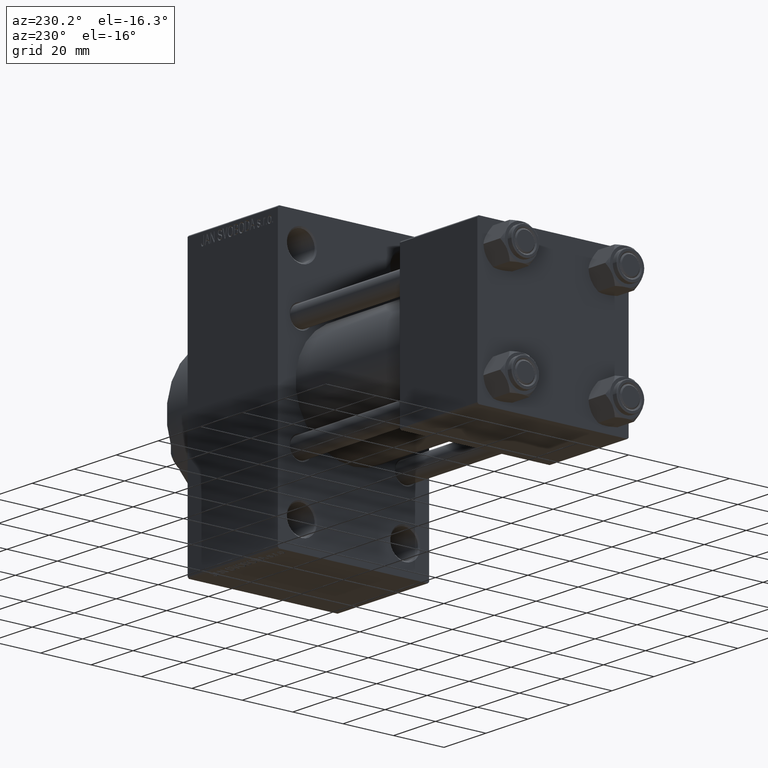
[diagram: clean part render]
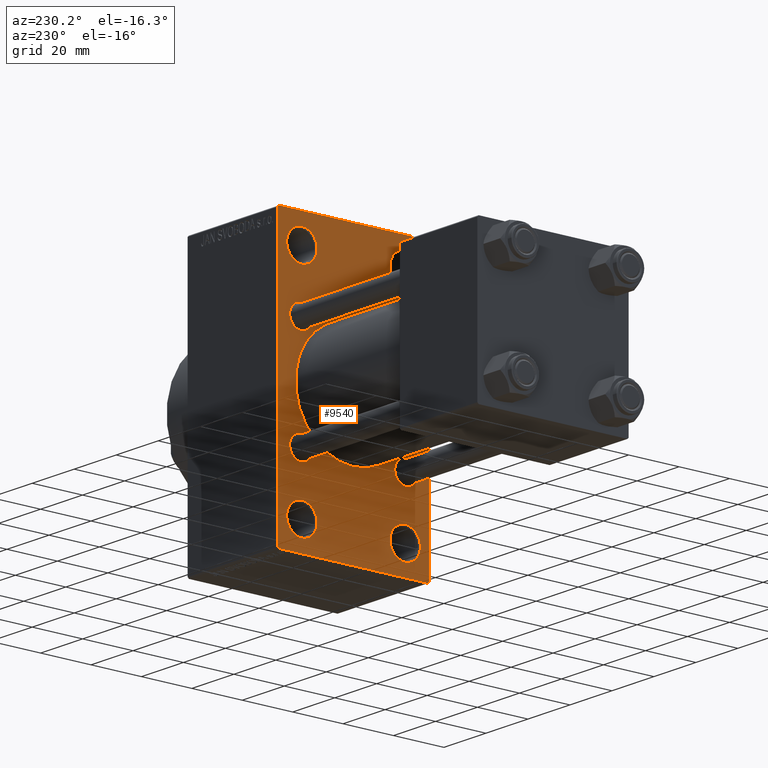
[diagram: same view with one face highlighted and labeled with its STEP entity id]
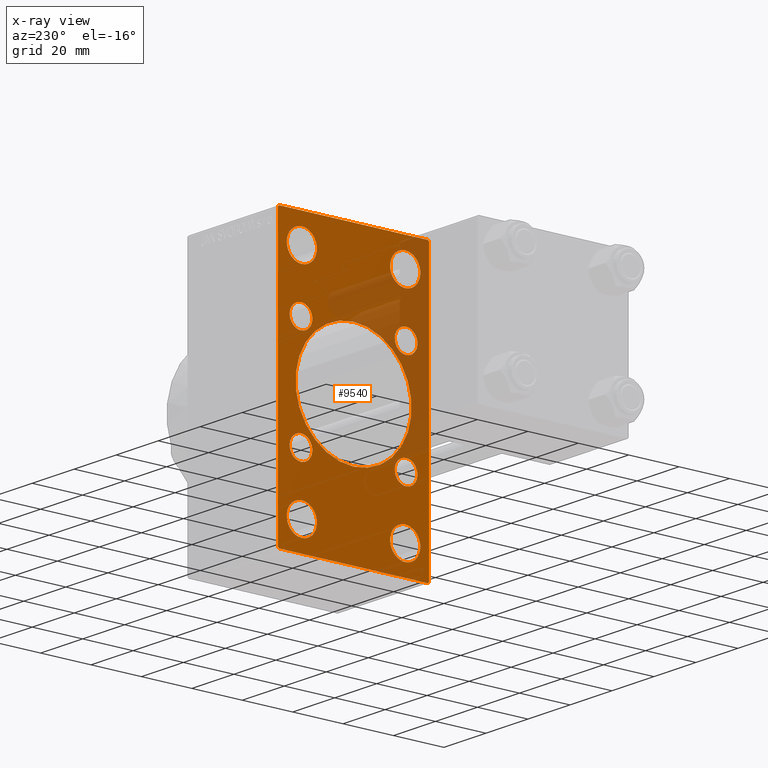
[diagram: x-ray of the same camera — body ghosted, the highlighted face saturated]
A machine part, auxiliary view. The second image highlights one B-rep face of the part: STEP entity #9540.
The next image is the same camera in x-ray: the body ghosted, the highlighted face saturated — about 23% of this face is hidden behind the body in this view.
In plain terms, the highlighted planar face has unit normal (-1, 0, 0).
Its self-contained STEP definition (entity closure, byte-faithful):
#44 = ORIENTED_EDGE ( 'NONE', *, *, #14372, .T. ) ;
#200 = VECTOR ( 'NONE', #3746, 1000.000000000000000 ) ;
#774 = CARTESIAN_POINT ( 'NONE',  ( 95.00000000000000000, -20.50000000000000000, -43.50000000000000000 ) ) ;
#848 = EDGE_CURVE ( 'NONE', #42941, #46891, #1721, .T. ) ;
#858 = CARTESIAN_POINT ( 'NONE',  ( 95.00000000000000000, -20.50000000000000000, 49.49999999999989342 ) ) ;
#940 = VERTEX_POINT ( 'NONE', #25855 ) ;
#1093 = CIRCLE ( 'NONE', #21708, 5.999999999999894307 ) ;
#1255 = DIRECTION ( 'NONE',  ( 0.000000000000000000, 0.000000000000000000, 1.000000000000000000 ) ) ;
#1276 = CARTESIAN_POINT ( 'NONE',  ( 95.00000000000000000, 20.84999999999999787, 20.85000000000000142 ) ) ;
#1329 = CARTESIAN_POINT ( 'NONE',  ( 95.00000000000000000, 41.99999999999998579, -41.99999999999998579 ) ) ;
#1371 = VECTOR ( 'NONE', #38058, 1000.000000000000114 ) ;
#1625 = CARTESIAN_POINT ( 'NONE',  ( 95.00000000000000000, -30.00000000000000000, 53.99999999999997158 ) ) ;
#1721 = CIRCLE ( 'NONE', #23895, 4.500000000000007105 ) ;
#2219 = CIRCLE ( 'NONE', #47242, 5.999999999999894307 ) ;
#2524 = EDGE_CURVE ( 'NONE', #15457, #940, #21631, .T. ) ;
#2753 = EDGE_LOOP ( 'NONE', ( #16267, #5501 ) ) ;
#2939 = ORIENTED_EDGE ( 'NONE', *, *, #27238, .T. ) ;
#3295 = CIRCLE ( 'NONE', #8644, 4.500000000000007105 ) ;
#3383 = DIRECTION ( 'NONE',  ( 0.000000000000000000, 0.000000000000000000, 1.000000000000000000 ) ) ;
#3426 = AXIS2_PLACEMENT_3D ( 'NONE', #4931, #12815, #26699 ) ;
#3618 = CARTESIAN_POINT ( 'NONE',  ( 95.00000000000000000, -20.50000000000000000, 43.50000000000000000 ) ) ;
#3746 = DIRECTION ( 'NONE',  ( 0.000000000000000000, -1.000000000000000000, -1.156482317317871478E-16 ) ) ;
#3866 = VERTEX_POINT ( 'NONE', #1625 ) ;
#3978 = LINE ( 'NONE', #11883, #200 ) ;
#4434 = AXIS2_PLACEMENT_3D ( 'NONE', #20028, #34603, #20510 ) ;
#4503 = AXIS2_PLACEMENT_3D ( 'NONE', #39455, #15088, #7655 ) ;
#4894 = AXIS2_PLACEMENT_3D ( 'NONE', #19446, #15868, #34024 ) ;
#4931 = CARTESIAN_POINT ( 'NONE',  ( 95.00000000000000000, -20.84999999999999076, 20.85000000000000497 ) ) ;
#5340 = ORIENTED_EDGE ( 'NONE', *, *, #41032, .T. ) ;
#5501 = ORIENTED_EDGE ( 'NONE', *, *, #10720, .T. ) ;
#5826 = ORIENTED_EDGE ( 'NONE', *, *, #32778, .T. ) ;
#6007 = VECTOR ( 'NONE', #28524, 1000.000000000000000 ) ;
#6042 = ORIENTED_EDGE ( 'NONE', *, *, #19248, .T. ) ;
#6116 = CARTESIAN_POINT ( 'NONE',  ( 95.00000000000000000, 20.84999999999999787, 16.34999999999999432 ) ) ;
#6732 = DIRECTION ( 'NONE',  ( 0.000000000000000000, 0.000000000000000000, 1.000000000000000000 ) ) ;
#6747 = EDGE_LOOP ( 'NONE', ( #37548, #23166 ) ) ;
#6898 = CARTESIAN_POINT ( 'NONE',  ( 95.00000000000000000, 20.50000000000000000, -49.49999999999989342 ) ) ;
#7034 = CARTESIAN_POINT ( 'NONE',  ( 95.00000000000000000, 20.84999999999999787, -25.35000000000000853 ) ) ;
#7655 = DIRECTION ( 'NONE',  ( 0.000000000000000000, 0.000000000000000000, -1.000000000000000000 ) ) ;
#7831 = DIRECTION ( 'NONE',  ( 0.000000000000000000, 0.000000000000000000, 1.000000000000000000 ) ) ;
#8004 = DIRECTION ( 'NONE',  ( 0.000000000000000000, 0.000000000000000000, 1.000000000000000000 ) ) ;
#8028 = DIRECTION ( 'NONE',  ( 0.000000000000000000, 0.7071067811865279218, -0.7071067811865671127 ) ) ;
#8133 = CARTESIAN_POINT ( 'NONE',  ( 95.00000000000000000, -20.84999999999999076, 20.85000000000000497 ) ) ;
#8436 = FACE_BOUND ( 'NONE', #6747, .T. ) ;
#8644 = AXIS2_PLACEMENT_3D ( 'NONE', #34679, #37782, #26806 ) ;
#8887 = CIRCLE ( 'NONE', #14241, 4.500000000000007105 ) ;
#8908 = FACE_BOUND ( 'NONE', #40189, .T. ) ;
#9514 = VERTEX_POINT ( 'NONE', #26849 ) ;
#9540 = ADVANCED_FACE ( 'NONE', ( #16327, #30210, #41635, #8908, #23519, #8436, #30901, #38288, #44755, #12042 ), #26627, .T. ) ;
#9725 = DIRECTION ( 'NONE',  ( 0.000000000000000000, 0.000000000000000000, -1.000000000000000000 ) ) ;
#9733 = DIRECTION ( 'NONE',  ( 1.000000000000000000, -0.000000000000000000, 0.000000000000000000 ) ) ;
#9960 = EDGE_CURVE ( 'NONE', #9514, #21174, #33605, .T. ) ;
#10042 = VERTEX_POINT ( 'NONE', #44575 ) ;
#10116 = VECTOR ( 'NONE', #39694, 1000.000000000000000 ) ;
#10312 = DIRECTION ( 'NONE',  ( 1.000000000000000000, -0.000000000000000000, 0.000000000000000000 ) ) ;
#10332 = LINE ( 'NONE', #28273, #10116 ) ;
#10394 = CIRCLE ( 'NONE', #40121, 5.999999999999894307 ) ;
#10720 = EDGE_CURVE ( 'NONE', #10042, #22596, #24796, .T. ) ;
#10743 = LINE ( 'NONE', #21771, #36380 ) ;
#11360 = CARTESIAN_POINT ( 'NONE',  ( 95.00000000000000000, 20.84999999999999787, 20.85000000000000142 ) ) ;
#11664 = AXIS2_PLACEMENT_3D ( 'NONE', #33967, #37539, #41577 ) ;
#11883 = CARTESIAN_POINT ( 'NONE',  ( 95.00000000000000000, 29.99999999999999645, -54.49999999999999289 ) ) ;
#12042 = FACE_OUTER_BOUND ( 'NONE', #17743, .T. ) ;
#12313 = DIRECTION ( 'NONE',  ( -0.000000000000000000, -0.7071067811865474617, -0.7071067811865474617 ) ) ;
#12461 = ORIENTED_EDGE ( 'NONE', *, *, #14431, .T. ) ;
#12815 = DIRECTION ( 'NONE',  ( 1.000000000000000000, -0.000000000000000000, 0.000000000000000000 ) ) ;
#12847 = DIRECTION ( 'NONE',  ( 0.000000000000000000, 0.000000000000000000, 1.000000000000000000 ) ) ;
#13028 = AXIS2_PLACEMENT_3D ( 'NONE', #11360, #18775, #8004 ) ;
#13338 = DIRECTION ( 'NONE',  ( 0.000000000000000000, 0.000000000000000000, 1.000000000000000000 ) ) ;
#13585 = CIRCLE ( 'NONE', #18949, 4.500000000000007105 ) ;
#13909 = AXIS2_PLACEMENT_3D ( 'NONE', #31501, #16921, #13338 ) ;
#14241 = AXIS2_PLACEMENT_3D ( 'NONE', #41137, #29711, #1255 ) ;
#14372 = EDGE_CURVE ( 'NONE', #21174, #26985, #10743, .T. ) ;
#14431 = EDGE_CURVE ( 'NONE', #47012, #26420, #16405, .T. ) ;
#14557 = CIRCLE ( 'NONE', #13028, 4.500000000000007105 ) ;
#14836 = CARTESIAN_POINT ( 'NONE',  ( 95.00000000000000000, 29.99999999999999645, 53.99999999999999289 ) ) ;
#14908 = DIRECTION ( 'NONE',  ( 0.000000000000000000, 0.000000000000000000, 1.000000000000000000 ) ) ;
#15088 = DIRECTION ( 'NONE',  ( 1.000000000000000000, 0.000000000000000000, 0.000000000000000000 ) ) ;
#15097 = EDGE_LOOP ( 'NONE', ( #23535, #5340 ) ) ;
#15170 = EDGE_LOOP ( 'NONE', ( #25090, #6042 ) ) ;
#15355 = DIRECTION ( 'NONE',  ( 0.000000000000000000, 0.000000000000000000, 1.000000000000000000 ) ) ;
#15416 = VERTEX_POINT ( 'NONE', #41962 ) ;
#15457 = VERTEX_POINT ( 'NONE', #6116 ) ;
#15868 = DIRECTION ( 'NONE',  ( -1.000000000000000000, 0.000000000000000000, -0.000000000000000000 ) ) ;
#16267 = ORIENTED_EDGE ( 'NONE', *, *, #44837, .T. ) ;
#16327 = FACE_BOUND ( 'NONE', #19694, .T. ) ;
#16405 = LINE ( 'NONE', #31693, #35610 ) ;
#16600 = EDGE_CURVE ( 'NONE', #29324, #46589, #45714, .T. ) ;
#16613 = EDGE_CURVE ( 'NONE', #41695, #36254, #2219, .T. ) ;
#16649 = EDGE_CURVE ( 'NONE', #40042, #15416, #25125, .T. ) ;
#16901 = CARTESIAN_POINT ( 'NONE',  ( 95.00000000000000000, -20.50000000000000000, -43.50000000000000000 ) ) ;
#16921 = DIRECTION ( 'NONE',  ( 1.000000000000000000, -0.000000000000000000, 0.000000000000000000 ) ) ;
#17088 = EDGE_CURVE ( 'NONE', #24423, #28566, #13585, .T. ) ;
#17129 = EDGE_CURVE ( 'NONE', #3866, #35482, #41634, .T. ) ;
#17743 = EDGE_LOOP ( 'NONE', ( #33905, #12461, #44330, #42592, #42052, #33387, #44, #38251 ) ) ;
#17889 = EDGE_CURVE ( 'NONE', #43585, #35084, #23538, .T. ) ;
#17929 = ORIENTED_EDGE ( 'NONE', *, *, #848, .T. ) ;
#18610 = CARTESIAN_POINT ( 'NONE',  ( 95.00000000000000000, -20.50000000000000000, 43.50000000000000000 ) ) ;
#18775 = DIRECTION ( 'NONE',  ( 1.000000000000000000, -0.000000000000000000, 0.000000000000000000 ) ) ;
#18949 = AXIS2_PLACEMENT_3D ( 'NONE', #33069, #36895, #14908 ) ;
#19038 = EDGE_CURVE ( 'NONE', #9514, #35482, #22073, .T. ) ;
#19056 = CARTESIAN_POINT ( 'NONE',  ( 95.00000000000000000, -20.84999999999999076, -16.34999999999999787 ) ) ;
#19248 = EDGE_CURVE ( 'NONE', #46188, #30203, #40334, .T. ) ;
#19413 = AXIS2_PLACEMENT_3D ( 'NONE', #8133, #26779, #23209 ) ;
#19446 = CARTESIAN_POINT ( 'NONE',  ( 95.00000000000000000, 0.000000000000000000, 0.000000000000000000 ) ) ;
#19694 = EDGE_LOOP ( 'NONE', ( #33861, #31388 ) ) ;
#19839 = CARTESIAN_POINT ( 'NONE',  ( 95.00000000000000000, 29.99999999999999645, -53.99999999999999289 ) ) ;
#20028 = CARTESIAN_POINT ( 'NONE',  ( 95.00000000000000000, 20.50000000000000000, -43.50000000000000000 ) ) ;
#20234 = ORIENTED_EDGE ( 'NONE', *, *, #17889, .T. ) ;
#20510 = DIRECTION ( 'NONE',  ( 0.000000000000000000, 0.000000000000000000, 1.000000000000000000 ) ) ;
#20745 = EDGE_CURVE ( 'NONE', #15416, #40042, #28195, .T. ) ;
#20750 = ORIENTED_EDGE ( 'NONE', *, *, #20745, .T. ) ;
#21125 = EDGE_LOOP ( 'NONE', ( #26813, #20750 ) ) ;
#21174 = VERTEX_POINT ( 'NONE', #14836 ) ;
#21553 = DIRECTION ( 'NONE',  ( 1.000000000000000000, -0.000000000000000000, 0.000000000000000000 ) ) ;
#21631 = CIRCLE ( 'NONE', #40659, 4.500000000000007105 ) ;
#21708 = AXIS2_PLACEMENT_3D ( 'NONE', #16901, #9733, #12847 ) ;
#21771 = CARTESIAN_POINT ( 'NONE',  ( 95.00000000000000000, 29.99999999999999645, 54.49999999999999289 ) ) ;
#22073 = LINE ( 'NONE', #25171, #6007 ) ;
#22236 = DIRECTION ( 'NONE',  ( 0.000000000000000000, 0.000000000000000000, -1.000000000000000000 ) ) ;
#22403 = CARTESIAN_POINT ( 'NONE',  ( 95.00000000000000000, 42.00000000000082423, 41.99999999999849365 ) ) ;
#22596 = VERTEX_POINT ( 'NONE', #29297 ) ;
#22789 = DIRECTION ( 'NONE',  ( 1.000000000000000000, -0.000000000000000000, 0.000000000000000000 ) ) ;
#22814 = DIRECTION ( 'NONE',  ( 1.000000000000000000, -0.000000000000000000, 0.000000000000000000 ) ) ;
#23166 = ORIENTED_EDGE ( 'NONE', *, *, #2524, .T. ) ;
#23209 = DIRECTION ( 'NONE',  ( 0.000000000000000000, 0.000000000000000000, 1.000000000000000000 ) ) ;
#23519 = FACE_BOUND ( 'NONE', #2753, .T. ) ;
#23535 = ORIENTED_EDGE ( 'NONE', *, *, #17088, .T. ) ;
#23538 = CIRCLE ( 'NONE', #4434, 5.999999999999894307 ) ;
#23895 = AXIS2_PLACEMENT_3D ( 'NONE', #46633, #45941, #6732 ) ;
#24396 = EDGE_CURVE ( 'NONE', #940, #15457, #14557, .T. ) ;
#24423 = VERTEX_POINT ( 'NONE', #44790 ) ;
#24796 = CIRCLE ( 'NONE', #3426, 4.500000000000007105 ) ;
#24910 = DIRECTION ( 'NONE',  ( 0.000000000000000000, 0.000000000000000000, 1.000000000000000000 ) ) ;
#25090 = ORIENTED_EDGE ( 'NONE', *, *, #45163, .T. ) ;
#25125 = CIRCLE ( 'NONE', #4503, 23.00000000000000000 ) ;
#25171 = CARTESIAN_POINT ( 'NONE',  ( 95.00000000000000000, 29.99999999999999645, 54.49999999999999289 ) ) ;
#25229 = CARTESIAN_POINT ( 'NONE',  ( 95.00000000000000000, -29.50000000000000355, -54.50000000000000000 ) ) ;
#25855 = CARTESIAN_POINT ( 'NONE',  ( 95.00000000000000000, 20.84999999999999787, 25.35000000000000853 ) ) ;
#26420 = VERTEX_POINT ( 'NONE', #42614 ) ;
#26627 = PLANE ( 'NONE',  #4894 ) ;
#26699 = DIRECTION ( 'NONE',  ( 0.000000000000000000, 0.000000000000000000, 1.000000000000000000 ) ) ;
#26730 = CARTESIAN_POINT ( 'NONE',  ( 95.00000000000000000, -20.50000000000000000, -49.49999999999989342 ) ) ;
#26779 = DIRECTION ( 'NONE',  ( 1.000000000000000000, -0.000000000000000000, 0.000000000000000000 ) ) ;
#26806 = DIRECTION ( 'NONE',  ( 0.000000000000000000, 0.000000000000000000, 1.000000000000000000 ) ) ;
#26813 = ORIENTED_EDGE ( 'NONE', *, *, #16649, .T. ) ;
#26849 = CARTESIAN_POINT ( 'NONE',  ( 95.00000000000000000, 29.50000000000002132, 54.49999999999999289 ) ) ;
#26952 = CIRCLE ( 'NONE', #11664, 5.999999999999894307 ) ;
#26985 = VERTEX_POINT ( 'NONE', #19839 ) ;
#27238 = EDGE_CURVE ( 'NONE', #36254, #41695, #45947, .T. ) ;
#28040 = CARTESIAN_POINT ( 'NONE',  ( 95.00000000000000000, 20.50000000000000000, 49.49999999999989342 ) ) ;
#28195 = CIRCLE ( 'NONE', #35830, 23.00000000000000000 ) ;
#28204 = EDGE_CURVE ( 'NONE', #37315, #47012, #3978, .T. ) ;
#28273 = CARTESIAN_POINT ( 'NONE',  ( 95.00000000000000000, -30.00000000000000000, 54.50000000000000000 ) ) ;
#28524 = DIRECTION ( 'NONE',  ( 0.000000000000000000, -1.000000000000000000, 1.156482317317871478E-16 ) ) ;
#28566 = VERTEX_POINT ( 'NONE', #7034 ) ;
#29297 = CARTESIAN_POINT ( 'NONE',  ( 95.00000000000000000, -20.84999999999999076, 25.35000000000001208 ) ) ;
#29309 = CARTESIAN_POINT ( 'NONE',  ( 95.00000000000000000, -2.602085213965210642E-15, 23.00000000000000000 ) ) ;
#29324 = VERTEX_POINT ( 'NONE', #33401 ) ;
#29711 = DIRECTION ( 'NONE',  ( 1.000000000000000000, -0.000000000000000000, 0.000000000000000000 ) ) ;
#29837 = DIRECTION ( 'NONE',  ( 1.000000000000000000, -0.000000000000000000, 0.000000000000000000 ) ) ;
#30203 = VERTEX_POINT ( 'NONE', #41722 ) ;
#30205 = DIRECTION ( 'NONE',  ( 0.000000000000000000, 0.000000000000000000, 1.000000000000000000 ) ) ;
#30210 = FACE_BOUND ( 'NONE', #15170, .T. ) ;
#30387 = ORIENTED_EDGE ( 'NONE', *, *, #33640, .T. ) ;
#30445 = AXIS2_PLACEMENT_3D ( 'NONE', #774, #22789, #15355 ) ;
#30901 = FACE_BOUND ( 'NONE', #15097, .T. ) ;
#31388 = ORIENTED_EDGE ( 'NONE', *, *, #16600, .T. ) ;
#31501 = CARTESIAN_POINT ( 'NONE',  ( 95.00000000000000000, 20.50000000000000000, 43.50000000000000000 ) ) ;
#31693 = CARTESIAN_POINT ( 'NONE',  ( 95.00000000000000000, -42.00000000000051159, -41.99999999999905498 ) ) ;
#32778 = EDGE_CURVE ( 'NONE', #35084, #43585, #26952, .T. ) ;
#33069 = CARTESIAN_POINT ( 'NONE',  ( 95.00000000000000000, 20.84999999999999787, -20.85000000000000142 ) ) ;
#33327 = EDGE_CURVE ( 'NONE', #3866, #26420, #10332, .T. ) ;
#33362 = CARTESIAN_POINT ( 'NONE',  ( 95.00000000000000000, 20.50000000000000000, 37.50000000000009948 ) ) ;
#33387 = ORIENTED_EDGE ( 'NONE', *, *, #9960, .T. ) ;
#33401 = CARTESIAN_POINT ( 'NONE',  ( 95.00000000000000000, -20.50000000000000000, 37.50000000000009948 ) ) ;
#33605 = LINE ( 'NONE', #22403, #39227 ) ;
#33640 = EDGE_CURVE ( 'NONE', #46891, #42941, #3295, .T. ) ;
#33861 = ORIENTED_EDGE ( 'NONE', *, *, #39644, .T. ) ;
#33905 = ORIENTED_EDGE ( 'NONE', *, *, #28204, .T. ) ;
#33967 = CARTESIAN_POINT ( 'NONE',  ( 95.00000000000000000, 20.50000000000000000, -43.50000000000000000 ) ) ;
#34024 = DIRECTION ( 'NONE',  ( -0.000000000000000000, 0.000000000000000000, 1.000000000000000000 ) ) ;
#34603 = DIRECTION ( 'NONE',  ( 1.000000000000000000, -0.000000000000000000, 0.000000000000000000 ) ) ;
#34679 = CARTESIAN_POINT ( 'NONE',  ( 95.00000000000000000, -20.84999999999999076, -20.85000000000000497 ) ) ;
#35084 = VERTEX_POINT ( 'NONE', #36982 ) ;
#35482 = VERTEX_POINT ( 'NONE', #39625 ) ;
#35610 = VECTOR ( 'NONE', #44658, 1000.000000000000000 ) ;
#35790 = EDGE_LOOP ( 'NONE', ( #5826, #20234 ) ) ;
#35830 = AXIS2_PLACEMENT_3D ( 'NONE', #41970, #38631, #9725 ) ;
#36254 = VERTEX_POINT ( 'NONE', #28040 ) ;
#36380 = VECTOR ( 'NONE', #22236, 1000.000000000000000 ) ;
#36583 = CARTESIAN_POINT ( 'NONE',  ( 95.00000000000000000, 20.50000000000000000, 43.50000000000000000 ) ) ;
#36895 = DIRECTION ( 'NONE',  ( 1.000000000000000000, -0.000000000000000000, 0.000000000000000000 ) ) ;
#36982 = CARTESIAN_POINT ( 'NONE',  ( 95.00000000000000000, 20.50000000000000000, -37.50000000000009948 ) ) ;
#37315 = VERTEX_POINT ( 'NONE', #46590 ) ;
#37328 = AXIS2_PLACEMENT_3D ( 'NONE', #3618, #10312, #24910 ) ;
#37539 = DIRECTION ( 'NONE',  ( 1.000000000000000000, -0.000000000000000000, 0.000000000000000000 ) ) ;
#37548 = ORIENTED_EDGE ( 'NONE', *, *, #24396, .T. ) ;
#37642 = LINE ( 'NONE', #1329, #44594 ) ;
#37782 = DIRECTION ( 'NONE',  ( 1.000000000000000000, -0.000000000000000000, 0.000000000000000000 ) ) ;
#38058 = DIRECTION ( 'NONE',  ( -0.000000000000000000, 0.7071067811865451302, 0.7071067811865500152 ) ) ;
#38251 = ORIENTED_EDGE ( 'NONE', *, *, #45453, .T. ) ;
#38288 = FACE_BOUND ( 'NONE', #38998, .T. ) ;
#38631 = DIRECTION ( 'NONE',  ( 1.000000000000000000, 0.000000000000000000, 0.000000000000000000 ) ) ;
#38998 = EDGE_LOOP ( 'NONE', ( #30387, #17929 ) ) ;
#39042 = CARTESIAN_POINT ( 'NONE',  ( 95.00000000000000000, -20.84999999999999076, -25.35000000000001208 ) ) ;
#39227 = VECTOR ( 'NONE', #8028, 1000.000000000000000 ) ;
#39455 = CARTESIAN_POINT ( 'NONE',  ( 95.00000000000000000, -2.602085213965210642E-15, 0.000000000000000000 ) ) ;
#39625 = CARTESIAN_POINT ( 'NONE',  ( 95.00000000000000000, -29.49999999999997513, 54.50000000000000000 ) ) ;
#39644 = EDGE_CURVE ( 'NONE', #46589, #29324, #10394, .T. ) ;
#39694 = DIRECTION ( 'NONE',  ( 0.000000000000000000, 0.000000000000000000, -1.000000000000000000 ) ) ;
#40042 = VERTEX_POINT ( 'NONE', #29309 ) ;
#40121 = AXIS2_PLACEMENT_3D ( 'NONE', #18610, #29837, #7831 ) ;
#40189 = EDGE_LOOP ( 'NONE', ( #2939, #43751 ) ) ;
#40334 = CIRCLE ( 'NONE', #30445, 5.999999999999894307 ) ;
#40659 = AXIS2_PLACEMENT_3D ( 'NONE', #1276, #22814, #30205 ) ;
#41032 = EDGE_CURVE ( 'NONE', #28566, #24423, #8887, .T. ) ;
#41137 = CARTESIAN_POINT ( 'NONE',  ( 95.00000000000000000, 20.84999999999999787, -20.85000000000000142 ) ) ;
#41156 = CARTESIAN_POINT ( 'NONE',  ( 95.00000000000000000, -42.00000000000008527, 41.99999999999979394 ) ) ;
#41577 = DIRECTION ( 'NONE',  ( 0.000000000000000000, 0.000000000000000000, 1.000000000000000000 ) ) ;
#41634 = LINE ( 'NONE', #41156, #1371 ) ;
#41635 = FACE_BOUND ( 'NONE', #35790, .T. ) ;
#41695 = VERTEX_POINT ( 'NONE', #33362 ) ;
#41722 = CARTESIAN_POINT ( 'NONE',  ( 95.00000000000000000, -20.50000000000000000, -37.50000000000009948 ) ) ;
#41962 = CARTESIAN_POINT ( 'NONE',  ( 95.00000000000000000, 2.146024240737012665E-16, -23.00000000000000000 ) ) ;
#41970 = CARTESIAN_POINT ( 'NONE',  ( 95.00000000000000000, -2.602085213965210642E-15, 0.000000000000000000 ) ) ;
#42052 = ORIENTED_EDGE ( 'NONE', *, *, #19038, .F. ) ;
#42592 = ORIENTED_EDGE ( 'NONE', *, *, #17129, .T. ) ;
#42614 = CARTESIAN_POINT ( 'NONE',  ( 95.00000000000000000, -30.00000000000000000, -53.99999999999998579 ) ) ;
#42941 = VERTEX_POINT ( 'NONE', #39042 ) ;
#43585 = VERTEX_POINT ( 'NONE', #6898 ) ;
#43751 = ORIENTED_EDGE ( 'NONE', *, *, #16613, .T. ) ;
#43807 = CIRCLE ( 'NONE', #19413, 4.500000000000007105 ) ;
#44330 = ORIENTED_EDGE ( 'NONE', *, *, #33327, .F. ) ;
#44575 = CARTESIAN_POINT ( 'NONE',  ( 95.00000000000000000, -20.84999999999999076, 16.34999999999999787 ) ) ;
#44594 = VECTOR ( 'NONE', #12313, 1000.000000000000114 ) ;
#44658 = DIRECTION ( 'NONE',  ( 0.000000000000000000, -0.7071067811865352493, 0.7071067811865597852 ) ) ;
#44755 = FACE_BOUND ( 'NONE', #21125, .T. ) ;
#44790 = CARTESIAN_POINT ( 'NONE',  ( 95.00000000000000000, 20.84999999999999787, -16.34999999999999432 ) ) ;
#44837 = EDGE_CURVE ( 'NONE', #22596, #10042, #43807, .T. ) ;
#45163 = EDGE_CURVE ( 'NONE', #30203, #46188, #1093, .T. ) ;
#45453 = EDGE_CURVE ( 'NONE', #26985, #37315, #37642, .T. ) ;
#45714 = CIRCLE ( 'NONE', #37328, 5.999999999999894307 ) ;
#45941 = DIRECTION ( 'NONE',  ( 1.000000000000000000, -0.000000000000000000, 0.000000000000000000 ) ) ;
#45947 = CIRCLE ( 'NONE', #13909, 5.999999999999894307 ) ;
#46188 = VERTEX_POINT ( 'NONE', #26730 ) ;
#46589 = VERTEX_POINT ( 'NONE', #858 ) ;
#46590 = CARTESIAN_POINT ( 'NONE',  ( 95.00000000000000000, 29.49999999999999645, -54.49999999999999289 ) ) ;
#46633 = CARTESIAN_POINT ( 'NONE',  ( 95.00000000000000000, -20.84999999999999076, -20.85000000000000497 ) ) ;
#46891 = VERTEX_POINT ( 'NONE', #19056 ) ;
#47012 = VERTEX_POINT ( 'NONE', #25229 ) ;
#47242 = AXIS2_PLACEMENT_3D ( 'NONE', #36583, #21553, #3383 ) ;